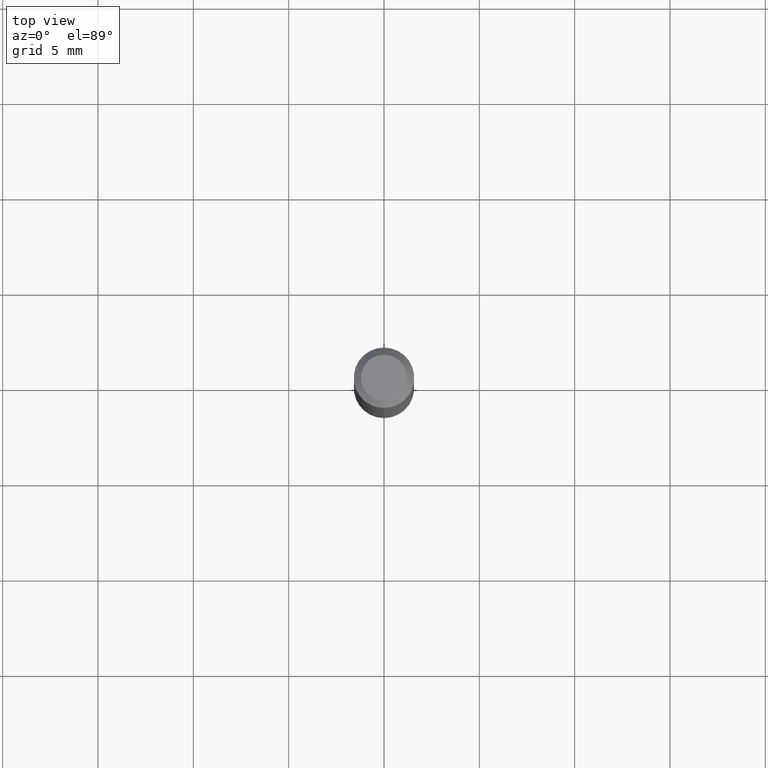
[diagram: clean part render]
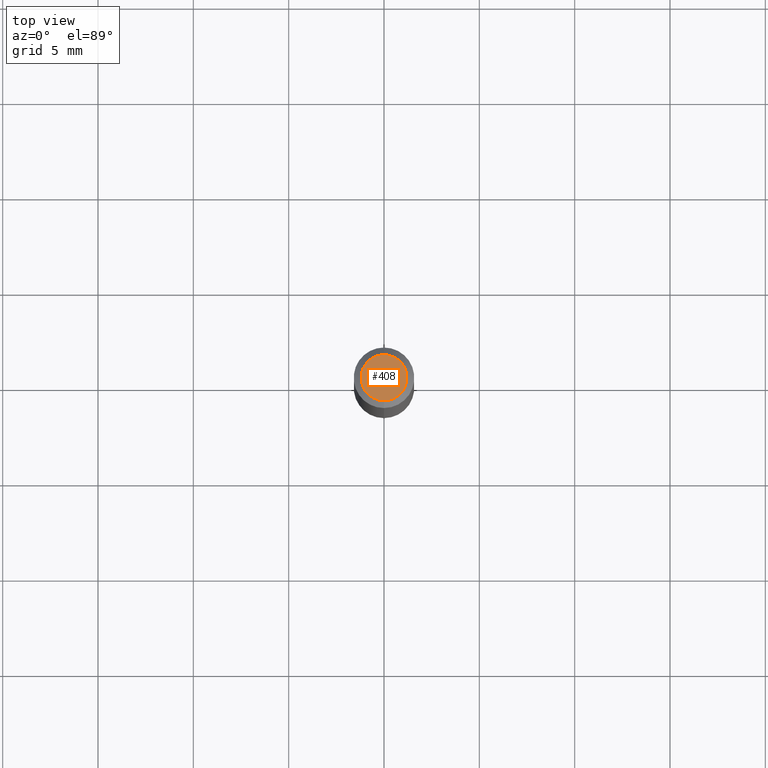
[diagram: same view with one face highlighted and labeled with its STEP entity id]
A machine part, top view. The second image highlights one B-rep face of the part: STEP entity #408.
In plain terms, the highlighted planar face has unit normal (0, -0, -1).
Its self-contained STEP definition (entity closure, byte-faithful):
#56 = CARTESIAN_POINT ( 'NONE',  ( 2.166542890100385746E-46, -3.093280958065800308E-32, -8.859463023223195379E-18 ) ) ;
#62 = DIRECTION ( 'NONE',  ( 6.982962677686265922E-15, 1.000000000000000000, -3.491499371866469505E-15 ) ) ;
#70 = ORIENTED_EDGE ( 'NONE', *, *, #283, .T. ) ;
#85 = DIRECTION ( 'NONE',  ( -2.445456213792252692E-29, 3.491499371866469900E-15, 1.000000000000000000 ) ) ;
#110 = AXIS2_PLACEMENT_3D ( 'NONE', #180, #416, #62 ) ;
#131 = EDGE_LOOP ( 'NONE', ( #485, #70 ) ) ;
#152 = CIRCLE ( 'NONE', #167, 0.04749999999999999362 ) ;
#163 = CARTESIAN_POINT ( 'NONE',  ( 2.166542890100385746E-46, -3.093280958065800308E-32, -8.859463023223195379E-18 ) ) ;
#165 = DIRECTION ( 'NONE',  ( -6.982962677686266711E-15, -1.000000000000000000, 3.491499371866470294E-15 ) ) ;
#167 = AXIS2_PLACEMENT_3D ( 'NONE', #163, #85, #480 ) ;
#180 = CARTESIAN_POINT ( 'NONE',  ( 3.316907271900976096E-16, 0.04749999999999999362, -1.702759516752688913E-16 ) ) ;
#205 = CARTESIAN_POINT ( 'NONE',  ( 3.840629472727447874E-16, 0.04749999999999999362, -1.747056831868805136E-16 ) ) ;
#228 = EDGE_CURVE ( 'NONE', #248, #481, #152, .T. ) ;
#248 = VERTEX_POINT ( 'NONE', #205 ) ;
#259 = AXIS2_PLACEMENT_3D ( 'NONE', #56, #367, #165 ) ;
#283 = EDGE_CURVE ( 'NONE', #481, #248, #444, .T. ) ;
#337 = PLANE ( 'NONE',  #110 ) ;
#367 = DIRECTION ( 'NONE',  ( -2.445456213792252692E-29, 3.491499371866469900E-15, 1.000000000000000000 ) ) ;
#408 = ADVANCED_FACE ( 'NONE', ( #500 ), #337, .F. ) ;
#412 = CARTESIAN_POINT ( 'NONE',  ( -3.773273898774340269E-16, -0.04749999999999999362, 1.569867571404341229E-16 ) ) ;
#416 = DIRECTION ( 'NONE',  ( 2.445456213792252692E-29, -3.491499371866469505E-15, -1.000000000000000000 ) ) ;
#444 = CIRCLE ( 'NONE', #259, 0.04749999999999999362 ) ;
#480 = DIRECTION ( 'NONE',  ( -6.982962677686266711E-15, -1.000000000000000000, 3.491499371866470294E-15 ) ) ;
#481 = VERTEX_POINT ( 'NONE', #412 ) ;
#485 = ORIENTED_EDGE ( 'NONE', *, *, #228, .T. ) ;
#500 = FACE_OUTER_BOUND ( 'NONE', #131, .T. ) ;